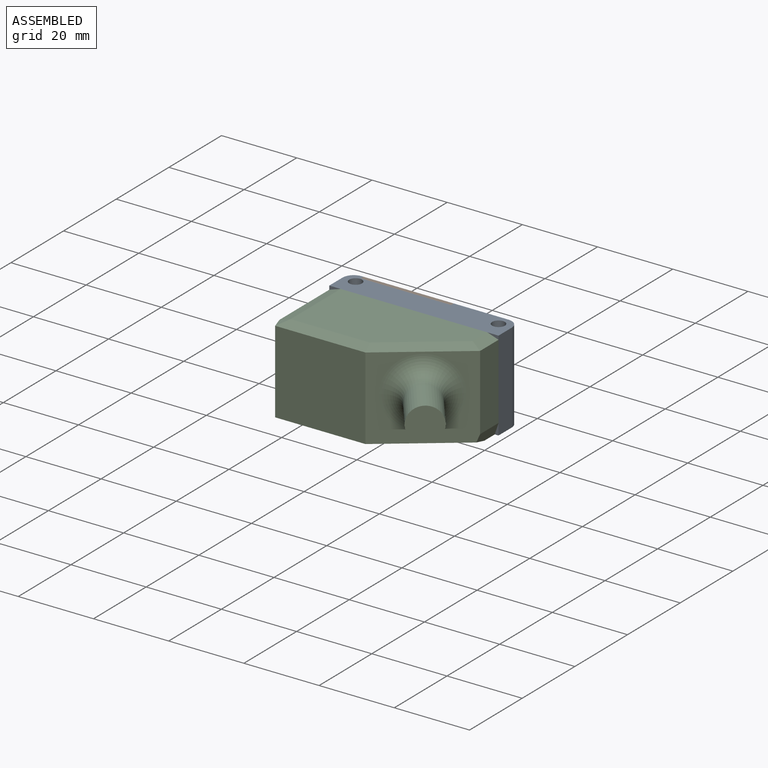
[diagram: assembled view]
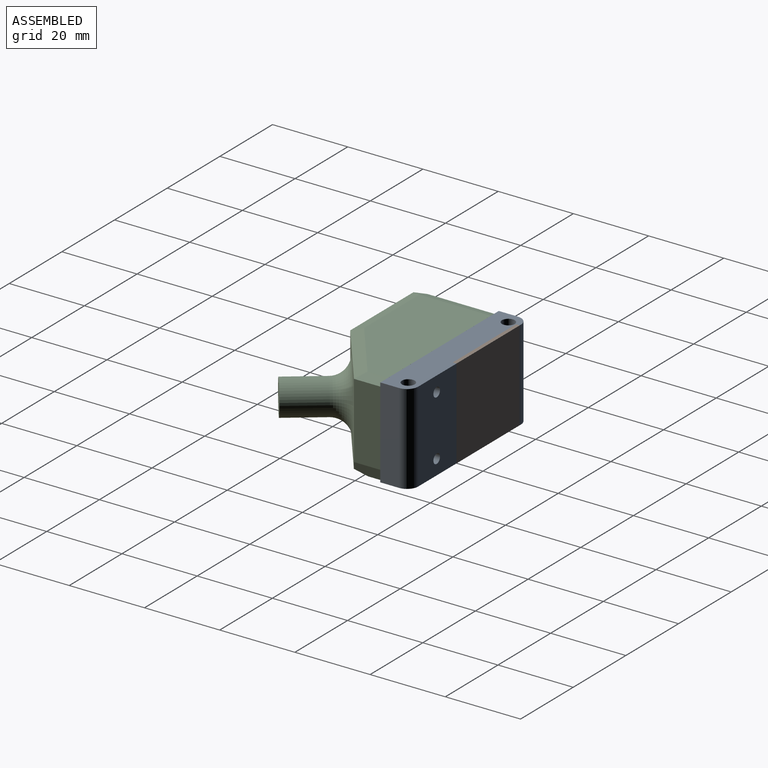
[diagram: assembled view, second angle]
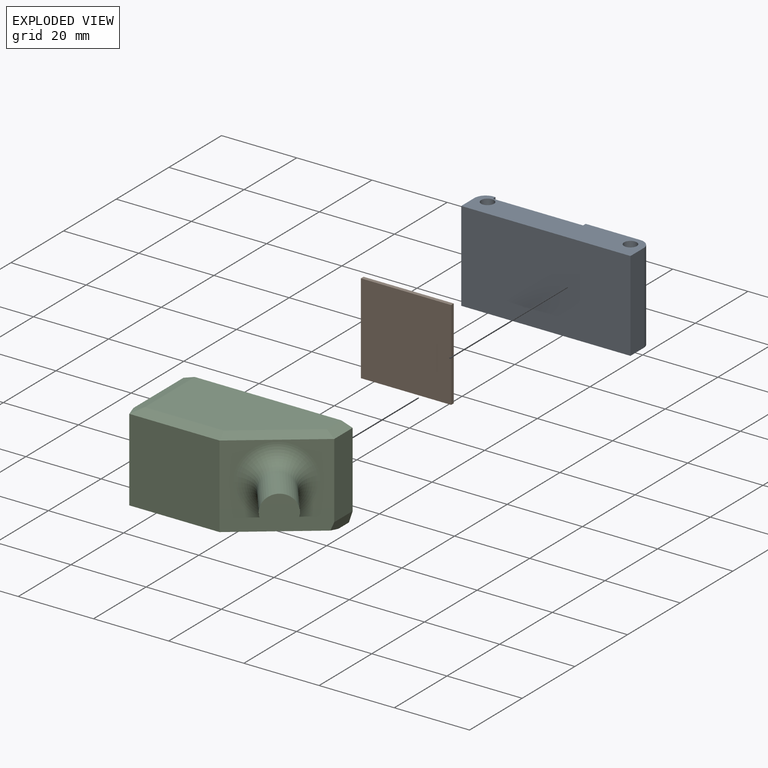
[diagram: exploded view]
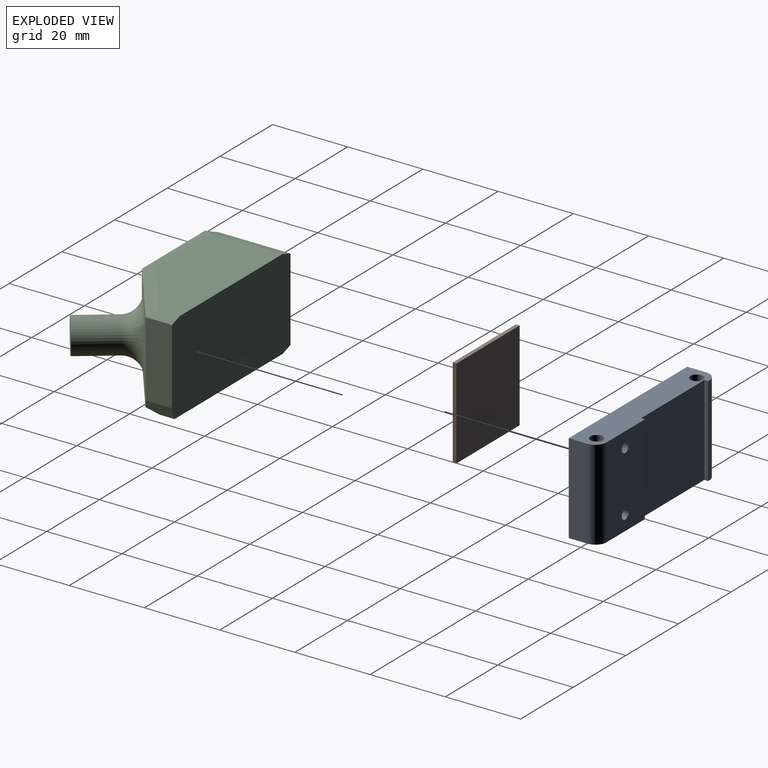
[diagram: exploded view, second angle]
ASSEMBLY  parts=3 mates=2
PART A: 18 faces, bbox 45x8x24 mm
  f0: plane 24x14.5mm, normal (0,1,0), area 338.3mm2, adj f1,f3,f9,f12,f14,f16
  f1: plane 45x8mm, normal (0,0,1), area 314mm2, adj f0,f2,f4,f5,f6,f7,f8,f9
  f2: plane 24x5mm, normal (-1,0,0), area 120mm2, adj f1,f3,f5,f10
  f3: plane 45x8mm, normal (0,0,-1), area 314mm2, adj f0,f2,f4,f5,f6,f7,f8,f9
  f4: plane 24x5mm, normal (1,0,0), area 120mm2, adj f1,f3,f5,f9
  f5: plane 45x24mm, normal (0,-1,0), area 1080mm2, adj f1,f2,f3,f4
  f6: plane 24x0.5mm, normal (0,1,0), area 11.9mm2, adj f1,f3,f10,f15
  f7: cylinder r=1.7mm len=24mm, axis (0,0,-1), area 256.4mm2, adj f1,f3
  f8: cylinder r=1.7mm len=24mm, axis (0,0,-1), area 256.4mm2, adj f1,f3
  f9: cylinder r=3mm len=24mm, axis (0,0,1), area 113.1mm2, adj f0,f1,f3,f4
  f10: cylinder r=3mm len=24mm, axis (0,0,-1), area 113.1mm2, adj f1,f2,f3,f6
  f11: cone r=0mm half-angle=59deg, axis (0,1,0), area 5.7mm2, adj f12
  f12: cylinder r=1.25mm len=4mm, axis (0,1,0), area 31.4mm2, adj f0,f11
  f13: cone r=0mm half-angle=59deg, axis (0,1,0), area 5.7mm2, adj f14
  f14: cylinder r=1.25mm len=4mm, axis (0,1,0), area 31.4mm2, adj f0,f13
  f15: plane 24x1mm, normal (1,0,0), area 24mm2, adj f1,f3,f6,f17
  f16: plane 24x1mm, normal (-1,0,0), area 24mm2, adj f0,f1,f3,f17
  f17: plane 24x24mm, normal (0,1,0), area 576mm2, adj f1,f3,f15,f16
PART B: 6 faces, bbox 24x1x24 mm
  f0: plane 24x1mm, normal (-1,0,0), area 24mm2, adj f1,f3,f4,f5
  f1: plane 24x1mm, normal (0,0,-1), area 24mm2, adj f0,f2,f4,f5
  f2: plane 24x1mm, normal (1,0,0), area 24mm2, adj f1,f3,f4,f5
  f3: plane 24x1mm, normal (0,0,1), area 24mm2, adj f0,f2,f4,f5
  f4: plane 24x24mm, normal (0,-1,0), area 576mm2, adj f0,f1,f2,f3
  f5: plane 24x24mm, normal (0,1,0), area 576mm2, adj f0,f1,f2,f3
PART C: 21 faces, bbox 48.2x28.3x30 mm
  f0: plane 20x7mm, normal (-1,0,0), area 140mm2, adj f1,f4,f7,f11
  f1: plane 45x24mm, normal (0,0,-1), area 1074mm2, adj f0,f2,f5,f6,f7,f9,f11,f17
  f2: plane 22x19mm, normal (1,0,0), area 418mm2, adj f1,f9,f14,f17
  f3: plane 24x22mm, normal (0,0,1), area 528mm2, adj f4,f10,f14,f15
  f4: plane 22x20mm, normal (-0.6,0,0.8), area 265.6mm2, adj f0,f3,f8,f11,f13,f20
  f5: plane 39x19mm, normal (0,-1,0), area 619.5mm2, adj f1,f7,f8,f9,f10
  f6: plane 41x19mm, normal (0,1,0), area 629mm2, adj f1,f11,f13,f15,f17
  f7: plane 7x3mm, normal (-0.32,-0.95,0), area 19.8mm2, adj f0,f1,f5,f8
  f8: plane 21x16.5mm, normal (-0.19,-0.95,0.25), area 75.1mm2, adj f4,f5,f7,f10
  f9: plane 19x3mm, normal (0.32,-0.95,0), area 60.1mm2, adj f1,f2,f5,f12
  f10: plane 24x3mm, normal (0,-0.95,0.32), area 71.2mm2, adj f3,f5,f8,f12
  f11: plane 7.5x3mm, normal (-0.95,0.32,0), area 21.3mm2, adj f0,f1,f4,f6,f13
  f12: plane 3x3mm, normal (0.31,-0.94,0.1), area 4.8mm2, adj f9,f10,f14
  f13: plane 20.33x18mm, normal (-0.19,0.95,0.25), area 77.7mm2, adj f4,f6,f11,f15
  f14: plane 22x3mm, normal (0.95,0,0.32), area 69.6mm2, adj f2,f3,f12,f16
  f15: plane 24x3mm, normal (0,0.95,0.32), area 71.2mm2, adj f3,f6,f13,f16
  f16: plane 3x3mm, normal (0.31,0.94,0.1), area 4.8mm2, adj f14,f15,f17
  f17: plane 19x3mm, normal (0.32,0.95,0), area 60.1mm2, adj f1,f2,f6,f16
  f18: cylinder r=4.5mm len=14.2mm, axis (0.6,0,-0.8), area 311mm2, adj f19,f20
  f19: plane 9x7.2mm, normal (-0.6,0,0.8), area 63.6mm2, adj f18
  f20: torus R=9.5mm, axis (-0.6,0,0.8), area 311.7mm2, adj f4,f18
PLACE A t=(-5.67,14.23,-11.23)mm
PLACE B rot(axis=(1,0,0),180deg) t=(-2.18,13.23,12.77)mm
PLACE C rot(axis=(0,-0.71,0.71),180deg) t=(39.33,14.23,-11.22)mm
MATE planar C.f1 <-> A.f5  axis (0,1,0) through (16.83,6.23,0.77)mm
MATE planar B.f5 <-> A.f17  axis (0,-1,0) through (9.82,13.23,0.77)mm
